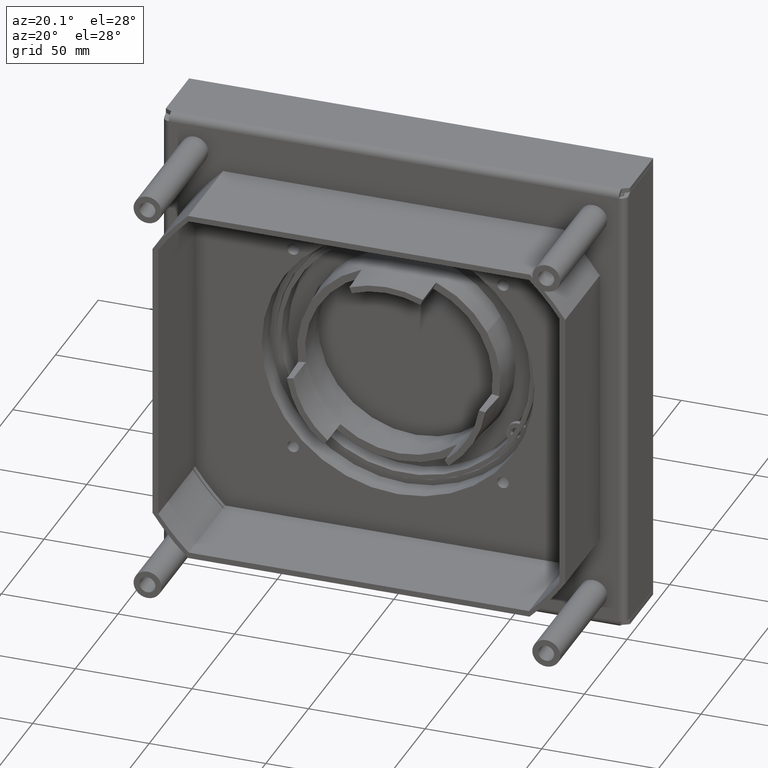
[diagram: clean part render]
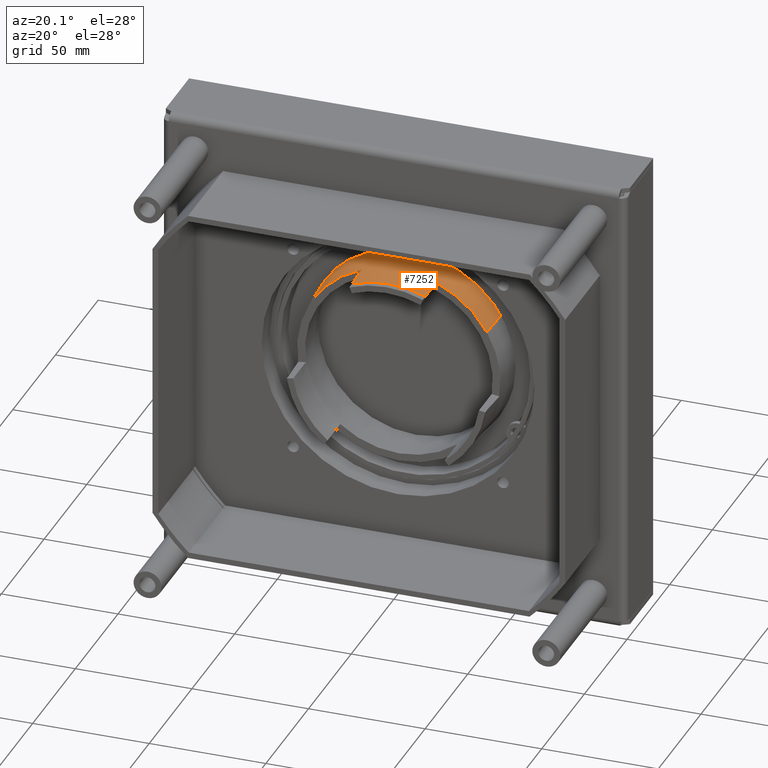
[diagram: same view with one face highlighted and labeled with its STEP entity id]
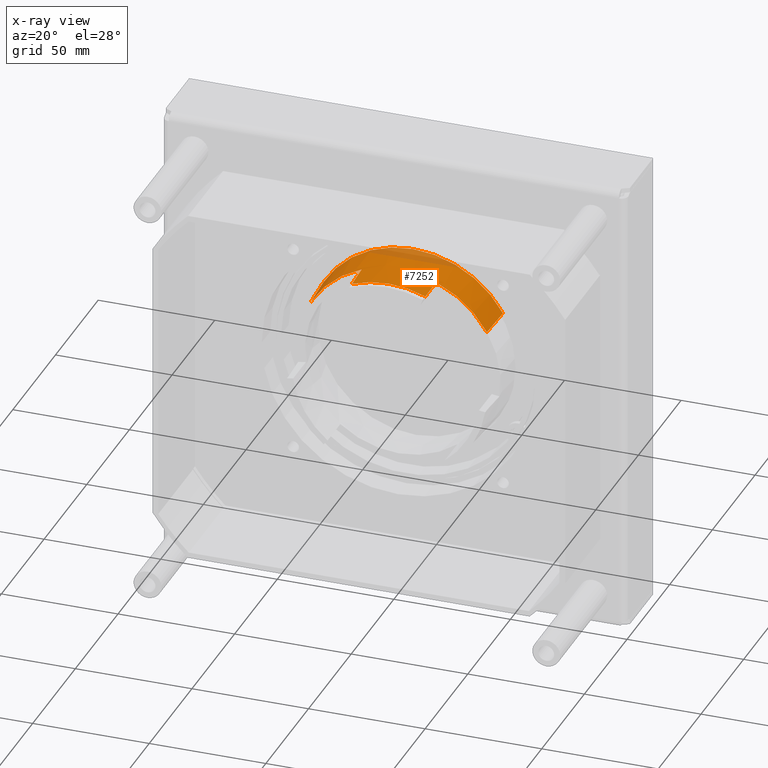
[diagram: x-ray of the same camera — body ghosted, the highlighted face saturated]
A machine part, auxiliary view. The second image highlights one B-rep face of the part: STEP entity #7252.
The next image is the same camera in x-ray: the body ghosted, the highlighted face saturated — about 13% of this face is hidden behind the body in this view.
In plain terms, the highlighted conical surface has half-angle 3 deg.
Its self-contained STEP definition (entity closure, byte-faithful):
#6599=CARTESIAN_POINT('',(0.E0,-1.136868377216E-13,0.E0));
#6600=DIRECTION('',(0.E0,1.E0,0.E0));
#6601=DIRECTION('',(-5.E-1,0.E0,-8.660254037844E-1));
#6602=AXIS2_PLACEMENT_3D('',#6599,#6600,#6601);
#6607=DIRECTION('',(2.616797812147E-2,9.986295347546E-1,4.532426763774E-2));
#6608=VECTOR('',#6607,1.676297307201E1);
#6609=CARTESIAN_POINT('',(-2.225E1,0.E0,-3.853813046841E1));
#6610=LINE('',#6609,#6608);
#6622=DIRECTION('',(-2.616797812147E-2,-9.986295347546E-1,4.532426763774E-2));
#6623=VECTOR('',#6622,1.676297307201E1);
#6624=CARTESIAN_POINT('',(-2.181134688740E1,1.674E1,3.777836099049E1));
#6625=LINE('',#6624,#6623);
#6661=CARTESIAN_POINT('',(0.E0,1.674E1,0.E0));
#6662=DIRECTION('',(0.E0,1.E0,0.E0));
#6663=DIRECTION('',(-5.E-1,0.E0,-8.660254037844E-1));
#6664=AXIS2_PLACEMENT_3D('',#6661,#6662,#6663);
#6669=CARTESIAN_POINT('',(0.E0,2.862170503158E1,0.E0));
#6670=DIRECTION('',(0.E0,-1.E0,0.E0));
#6671=DIRECTION('',(-9.304175679820E-1,0.E0,3.665012267243E-1));
#6672=AXIS2_PLACEMENT_3D('',#6669,#6670,#6671);
#6677=CARTESIAN_POINT('',(0.E0,1.674E1,0.E0));
#6678=DIRECTION('',(0.E0,1.E0,0.E0));
#6679=DIRECTION('',(-9.304175679820E-1,0.E0,3.665012267243E-1));
#6680=AXIS2_PLACEMENT_3D('',#6677,#6678,#6679);
#6915=DIRECTION('',(-4.869429312557E-2,-9.986295347546E-1,1.918119216483E-2));
#6916=VECTOR('',#6915,1.189801084194E1);
#6917=CARTESIAN_POINT('',(-4.000795542323E1,2.862170503159E1,1.575955274914E1));
#6918=LINE('',#6917,#6916);
#6972=DIRECTION('',(-4.869429312557E-2,-9.986295347546E-1,-1.918119216483E-2));
#6973=VECTOR('',#6972,1.189801084194E1);
#6974=CARTESIAN_POINT('',(-4.000795542323E1,2.862170503159E1,
-1.575955274914E1));
#6975=LINE('',#6974,#6973);
#7067=CARTESIAN_POINT('',(-2.225E1,0.E0,-3.853813046841E1));
#7068=CARTESIAN_POINT('',(-2.181134688740E1,1.674E1,-3.777836099049E1));
#7069=VERTEX_POINT('',#7067);
#7070=VERTEX_POINT('',#7068);
#7081=CARTESIAN_POINT('',(-2.181134688740E1,1.674E1,3.777836099049E1));
#7082=CARTESIAN_POINT('',(-2.225E1,0.E0,3.853813046841E1));
#7083=VERTEX_POINT('',#7081);
#7084=VERTEX_POINT('',#7082);
#7119=CARTESIAN_POINT('',(-4.058732065078E1,1.674E1,1.598777078148E1));
#7121=VERTEX_POINT('',#7119);
#7123=CARTESIAN_POINT('',(-4.058732065078E1,1.674E1,-1.598777078148E1));
#7125=VERTEX_POINT('',#7123);
#7137=CARTESIAN_POINT('',(-4.000795542323E1,2.862170503159E1,
-1.575955274914E1));
#7138=VERTEX_POINT('',#7137);
#7149=CARTESIAN_POINT('',(-4.000795542323E1,2.862170503159E1,1.575955274914E1));
#7150=VERTEX_POINT('',#7149);
#7232=CARTESIAN_POINT('',(0.E0,1.431085251579E1,0.E0));
#7233=DIRECTION('',(0.E0,-1.E0,0.E0));
#7234=DIRECTION('',(-5.E-1,0.E0,-8.660254037844E-1));
#7235=AXIS2_PLACEMENT_3D('',#7232,#7233,#7234);
#7236=CONICAL_SURFACE('',#7235,4.375E1,3.E0);
#7237=ORIENTED_EDGE('',*,*,#7206,.T.);
#7239=ORIENTED_EDGE('',*,*,#7238,.T.);
#7241=ORIENTED_EDGE('',*,*,#7240,.F.);
#7243=ORIENTED_EDGE('',*,*,#7242,.F.);
#7245=ORIENTED_EDGE('',*,*,#7244,.T.);
#7247=ORIENTED_EDGE('',*,*,#7246,.T.);
#7248=ORIENTED_EDGE('',*,*,#7209,.T.);
#7249=ORIENTED_EDGE('',*,*,#7196,.F.);
#7250=EDGE_LOOP('',(#7237,#7239,#7241,#7243,#7245,#7247,#7248,#7249));
#7251=FACE_OUTER_BOUND('',#7250,.F.);
#6603=CIRCLE('',#6602,4.45E1);
#6665=CIRCLE('',#6664,4.362269377480E1);
#6673=CIRCLE('',#6672,4.3E1);
#6681=CIRCLE('',#6680,4.362269377480E1);
#7196=EDGE_CURVE('',#7069,#7084,#6603,.T.);
#7206=EDGE_CURVE('',#7069,#7070,#6610,.T.);
#7209=EDGE_CURVE('',#7083,#7084,#6625,.T.);
#7238=EDGE_CURVE('',#7070,#7125,#6665,.T.);
#7240=EDGE_CURVE('',#7138,#7125,#6975,.T.);
#7242=EDGE_CURVE('',#7150,#7138,#6673,.T.);
#7244=EDGE_CURVE('',#7150,#7121,#6918,.T.);
#7246=EDGE_CURVE('',#7121,#7083,#6681,.T.);
#7252=ADVANCED_FACE('',(#7251),#7236,.T.);